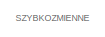
[diagram: root canvas - part 1/10, top center region]
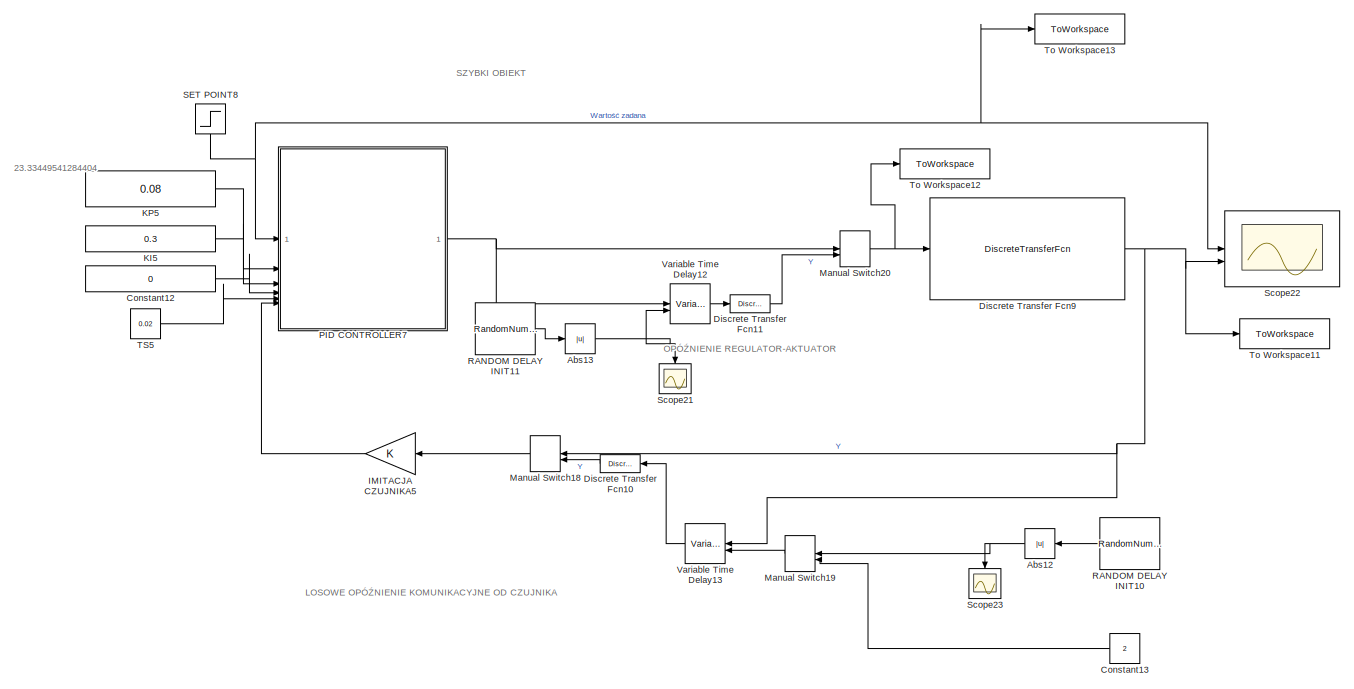
[diagram: root canvas - part 2/10, top right region]
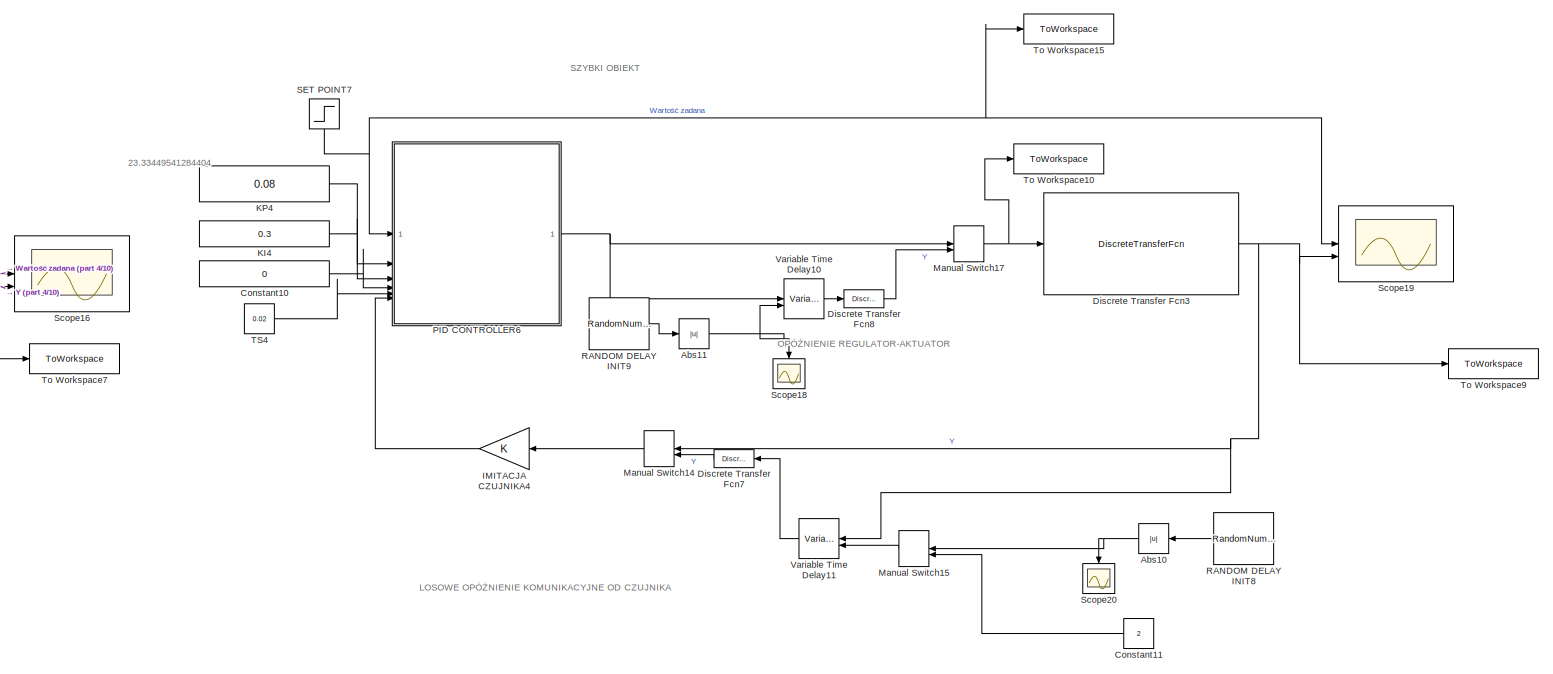
[diagram: root canvas - part 3/10, top right region]
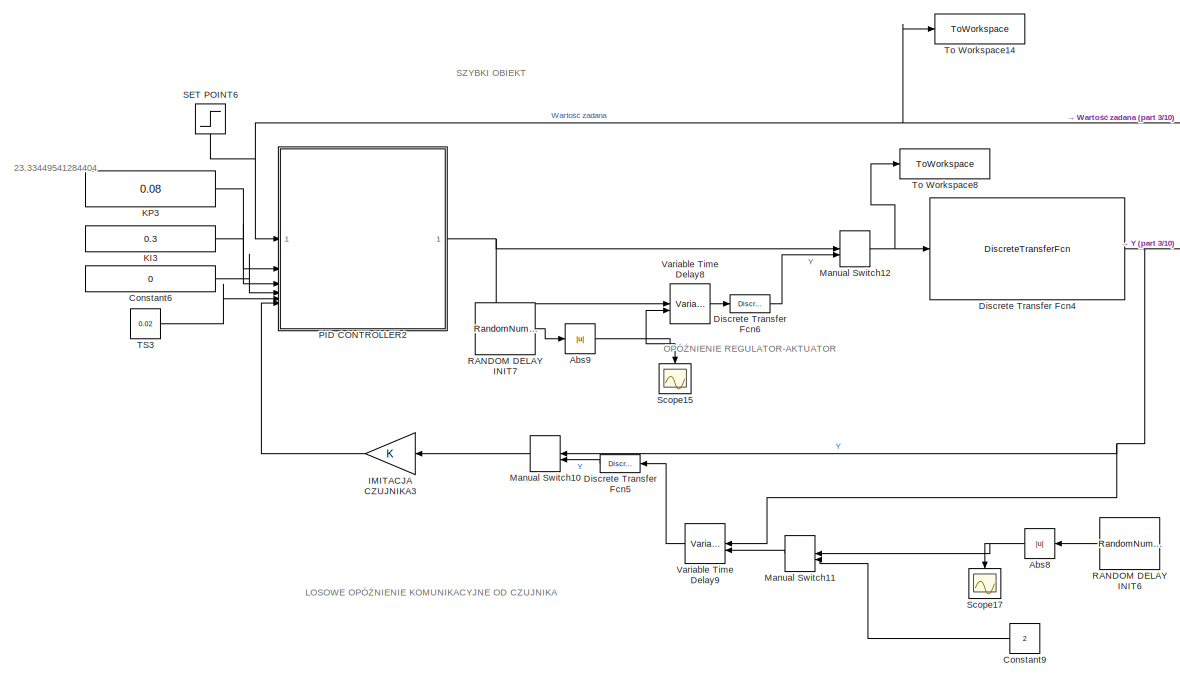
[diagram: root canvas - part 4/10, top center region]
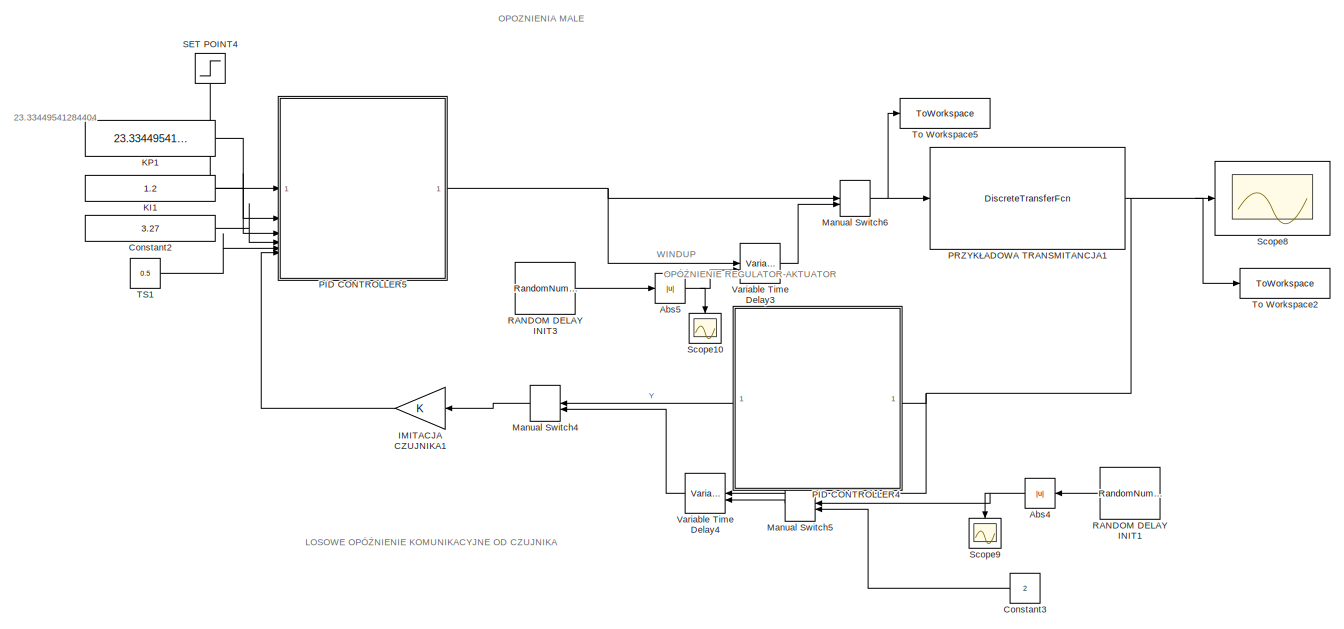
[diagram: root canvas - part 5/10, middle left region]
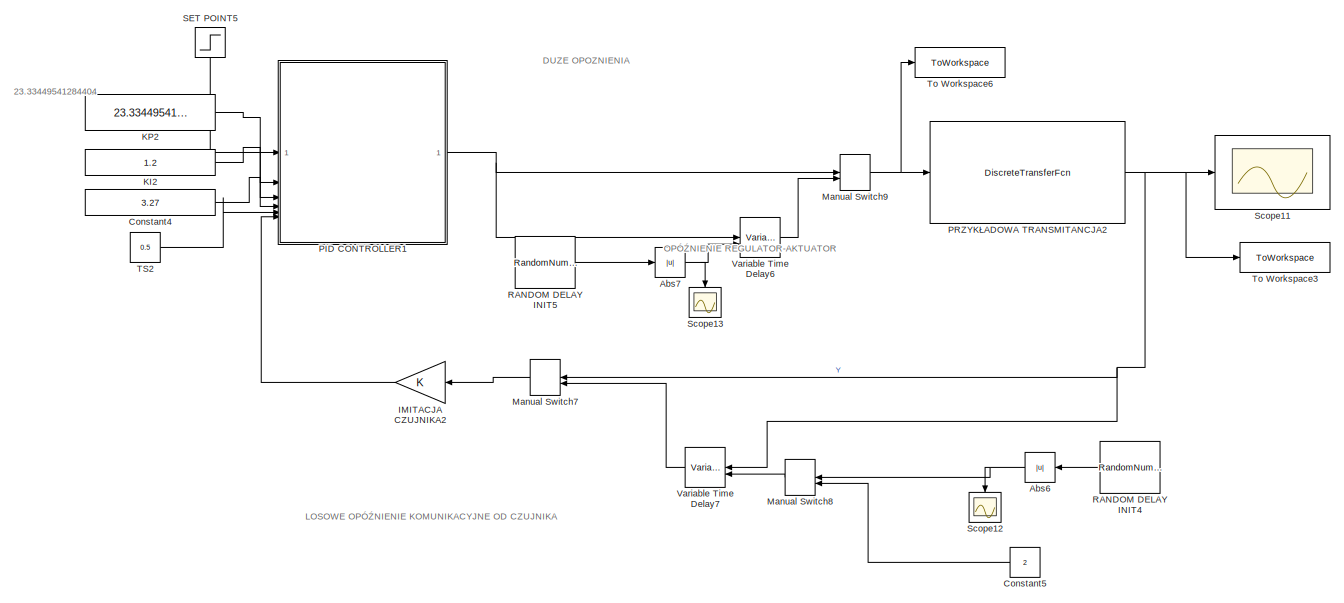
[diagram: root canvas - part 6/10, central region]
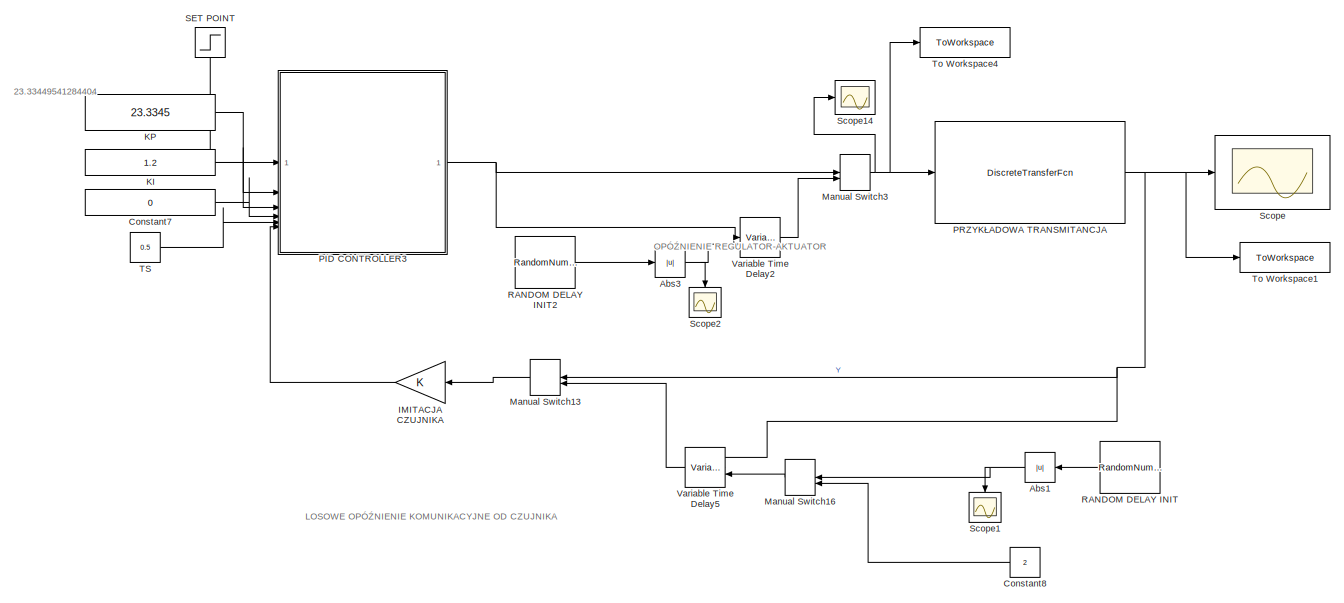
[diagram: root canvas - part 7/10, middle left region]
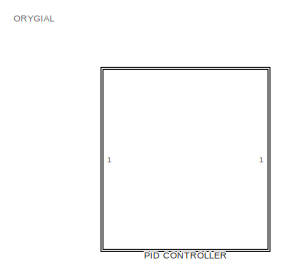
[diagram: root canvas - part 8/10, middle left region]
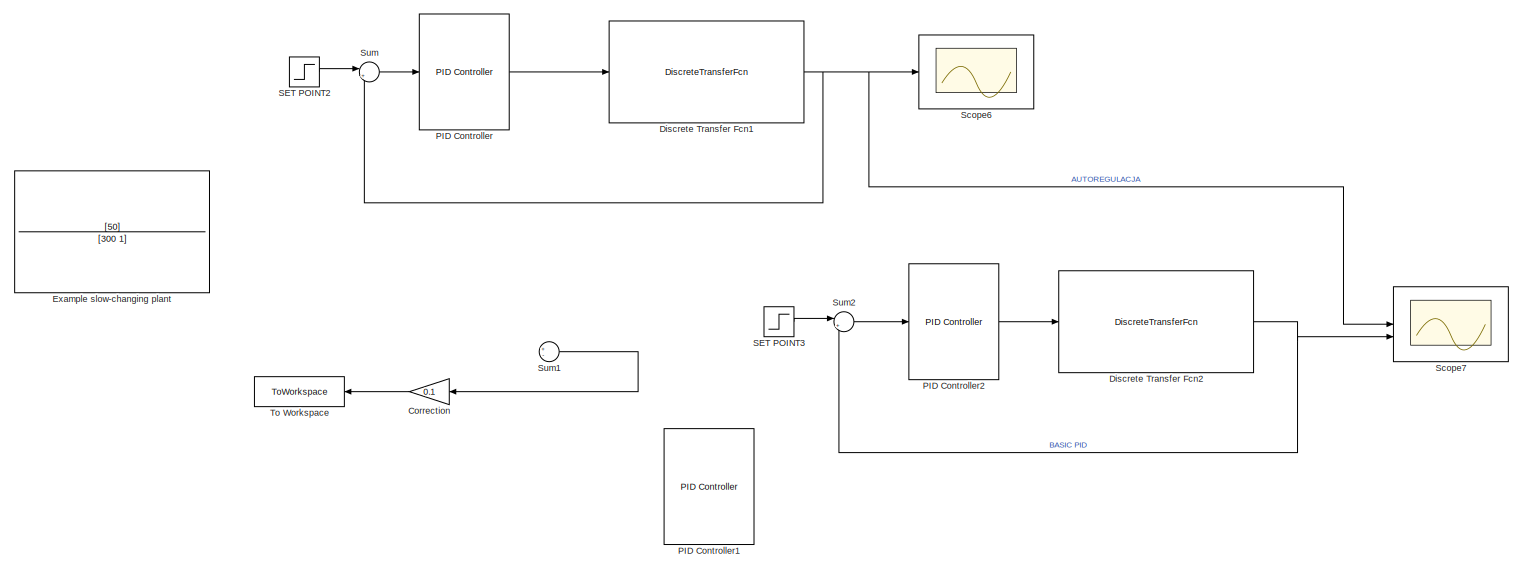
[diagram: root canvas - part 9/10, bottom left region]
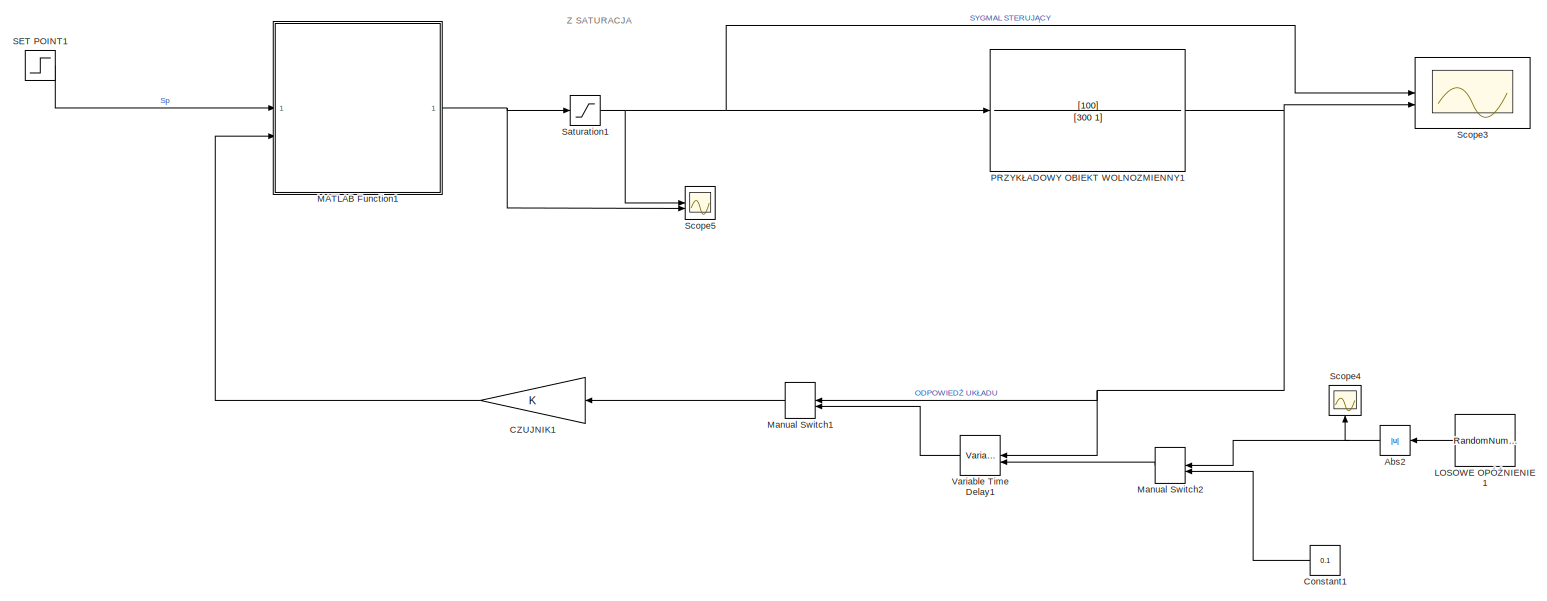
[diagram: root canvas - part 10/10, bottom left region]
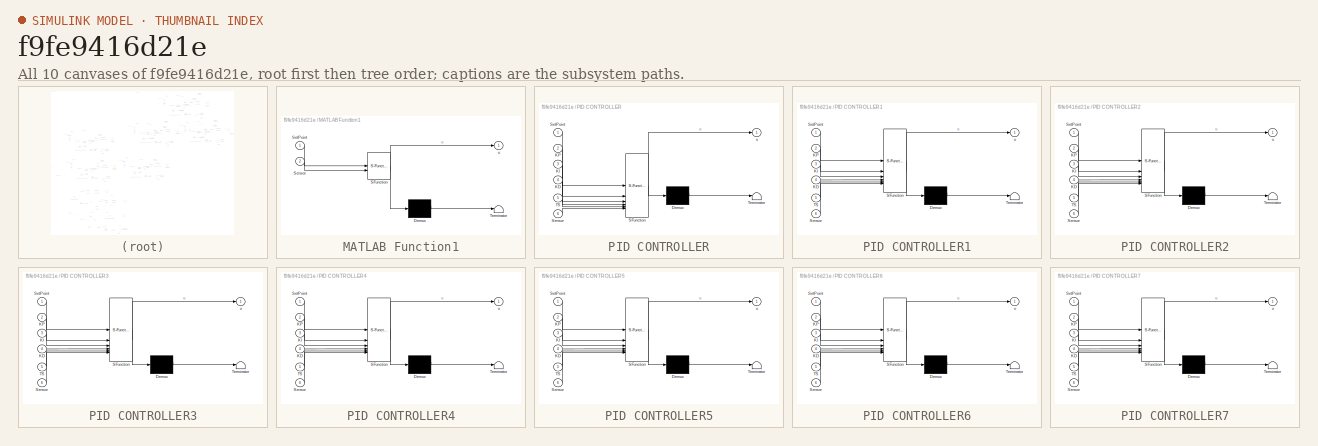
[diagram: thumbnail index - all 10 canvases of the model, root first then tree order]
MODEL slx_f9fe9416d21e
KIND model
CONFIG AbsTol = auto
CONFIG EnableMultiTasking = off
CONFIG FixedStep = auto
CONFIG MaxStep = auto
CONFIG MinStep = auto
CONFIG RelTol = 1e-3
CONFIG SampleTimeConstraint = Unconstrained
CONFIG SolverName = VariableStepAuto
CONFIG StartTime = 0.0
CONFIG StopTime = 20
BLOCK [Abs] Abs1
  NameLocation = top
  SaturateOnIntegerOverflow = off
BLOCK [Abs] Abs10
  NameLocation = top
  SaturateOnIntegerOverflow = off
BLOCK [Abs] Abs11
  SaturateOnIntegerOverflow = off
BLOCK [Abs] Abs12
  NameLocation = top
  SaturateOnIntegerOverflow = off
BLOCK [Abs] Abs13
  SaturateOnIntegerOverflow = off
BLOCK [Abs] Abs2
  Commented = on
  NameLocation = top
  SaturateOnIntegerOverflow = off
BLOCK [Abs] Abs3
  SaturateOnIntegerOverflow = off
BLOCK [Abs] Abs4
  Commented = on
  NameLocation = top
  SaturateOnIntegerOverflow = off
BLOCK [Abs] Abs5
  Commented = on
  SaturateOnIntegerOverflow = off
BLOCK [Abs] Abs6
  Commented = on
  NameLocation = top
  SaturateOnIntegerOverflow = off
BLOCK [Abs] Abs7
  Commented = on
  SaturateOnIntegerOverflow = off
BLOCK [Abs] Abs8
  NameLocation = top
  SaturateOnIntegerOverflow = off
BLOCK [Abs] Abs9
  SaturateOnIntegerOverflow = off
BLOCK [Gain] CZUJNIK1
  Commented = on
  NameLocation = top
BLOCK [Constant] Constant1
  Commented = on
  Value = 0.1
BLOCK [Constant] Constant10
  Value = 0
BLOCK [Constant] Constant11
  Value = 2
BLOCK [Constant] Constant12
  Value = 0
BLOCK [Constant] Constant13
  Value = 2
BLOCK [Constant] Constant2
  Commented = on
  Value = 3.27
BLOCK [Constant] Constant3
  Commented = on
  Value = 2
BLOCK [Constant] Constant4
  Commented = on
  Value = 3.27
BLOCK [Constant] Constant5
  Commented = on
  Value = 2
BLOCK [Constant] Constant6
  Value = 0
BLOCK [Constant] Constant7
  Value = 0
BLOCK [Constant] Constant8
  Value = 2
BLOCK [Constant] Constant9
  Value = 2
BLOCK [Gain] Correction
  Commented = on
  Gain = 0.1
  NameLocation = top
BLOCK [DiscreteTransferFcn] Discrete Transfer Fcn1
  Denominator = [1 -1]
  InputPortMap = u0
  Numerator = [0.001667]
BLOCK [DiscreteTransferFcn] Discrete Transfer Fcn10
  Denominator = [1]
  InputPortMap = u0
  NameLocation = top
  SampleTime = 0.02
BLOCK [DiscreteTransferFcn] Discrete Transfer Fcn11
  Denominator = [1]
  InputPortMap = u0
  SampleTime = 0.02
BLOCK [DiscreteTransferFcn] Discrete Transfer Fcn2
  Denominator = [1 -0.9355]
  InputPortMap = u0
  Numerator = [0.129]
  SampleTime = 0.02
BLOCK [DiscreteTransferFcn] Discrete Transfer Fcn3
  Denominator = [1 -0.9355]
  InputPortMap = u0
  Numerator = [0.129]
  SampleTime = 0.02
BLOCK [DiscreteTransferFcn] Discrete Transfer Fcn4
  Denominator = [1 -0.9355]
  InputPortMap = u0
  Numerator = [0.129]
  SampleTime = 0.02
BLOCK [DiscreteTransferFcn] Discrete Transfer Fcn5
  Denominator = [1]
  InputPortMap = u0
  NameLocation = top
  SampleTime = 0.02
BLOCK [DiscreteTransferFcn] Discrete Transfer Fcn6
  Denominator = [1]
  InputPortMap = u0
  SampleTime = 0.02
BLOCK [DiscreteTransferFcn] Discrete Transfer Fcn7
  Denominator = [1]
  InputPortMap = u0
  NameLocation = top
  SampleTime = 0.02
BLOCK [DiscreteTransferFcn] Discrete Transfer Fcn8
  Denominator = [1]
  InputPortMap = u0
  SampleTime = 0.02
BLOCK [DiscreteTransferFcn] Discrete Transfer Fcn9
  Denominator = [1 -0.9355]
  InputPortMap = u0
  Numerator = [0.129]
  SampleTime = 0.02
BLOCK [TransferFcn] Example slow-changing plant 
  Commented = on
  Denominator = [300 1]
  Numerator = [50]
BLOCK [Gain] IMITACJA CZUJNIKA
  NameLocation = top
BLOCK [Gain] IMITACJA CZUJNIKA1
  Commented = on
  NameLocation = top
BLOCK [Gain] IMITACJA CZUJNIKA2
  Commented = on
  NameLocation = top
BLOCK [Gain] IMITACJA CZUJNIKA3
  NameLocation = top
BLOCK [Gain] IMITACJA CZUJNIKA4
  NameLocation = top
BLOCK [Gain] IMITACJA CZUJNIKA5
  NameLocation = top
BLOCK [Constant] KI
  Value = 1.2
BLOCK [Constant] KI1
  Commented = on
  Value = 1.2
BLOCK [Constant] KI2
  Commented = on
  Value = 1.2
BLOCK [Constant] KI3
  Value = 0.3
BLOCK [Constant] KI4
  Value = 0.3
BLOCK [Constant] KI5
  Value = 0.3
BLOCK [Constant] KP
  Value = 23.3345
BLOCK [Constant] KP1
  Commented = on
  Value = 23.33449541284404
BLOCK [Constant] KP2
  Commented = on
  Value = 23.33449541284404
BLOCK [Constant] KP3
  Value = 0.08
BLOCK [Constant] KP4
  Value = 0.08
BLOCK [Constant] KP5
  Value = 0.08
BLOCK [RandomNumber] LOSOWE OPÓŹNIENIE1
  Commented = on
  Mean = 0.1
  NameLocation = top
  SampleTime = 0.1
  Variance = 0.0001
BLOCK [SubSystem] MATLAB Function1
  Commented = on
  ErrorFcn = Stateflow.Translate.translate
  LibrarySourceBlock = simulink/User-Defined\nFunctions/MATLAB Function
  PermitHierarchicalResolution = ExplicitOnly
  SFBlockType = MATLAB Function
  TreatAsAtomicUnit = on
BLOCK [Demux] MATLAB Function1/ Demux 
  Outputs = 1
BLOCK [S-Function] MATLAB Function1/ SFunction 
  EnableBusSupport = on
  FunctionName = sf_sfun
  PortCounts = [2 2]
  SFcnIsStateOwnerBlock = off
  SFunctionDeploymentMode = off
  Tag = Stateflow S-Function 1
BLOCK [Terminator] MATLAB Function1/ Terminator 
BLOCK [Inport] MATLAB Function1/Sensor
  Port = 2
BLOCK [Inport] MATLAB Function1/SetPoint
BLOCK [Outport] MATLAB Function1/u
BLOCK [ManualSwitch] Manual Switch1
  Commented = on
  CurrentSetting = 0
BLOCK [ManualSwitch] Manual Switch10
BLOCK [ManualSwitch] Manual Switch11
BLOCK [ManualSwitch] Manual Switch12
  NameLocation = top
BLOCK [ManualSwitch] Manual Switch13
BLOCK [ManualSwitch] Manual Switch14
BLOCK [ManualSwitch] Manual Switch15
BLOCK [ManualSwitch] Manual Switch16
BLOCK [ManualSwitch] Manual Switch17
  CurrentSetting = 0
  NameLocation = top
BLOCK [ManualSwitch] Manual Switch18
  CurrentSetting = 0
BLOCK [ManualSwitch] Manual Switch19
BLOCK [ManualSwitch] Manual Switch2
  Commented = on
BLOCK [ManualSwitch] Manual Switch20
  NameLocation = top
BLOCK [ManualSwitch] Manual Switch3
  NameLocation = top
BLOCK [ManualSwitch] Manual Switch4
  Commented = on
  CurrentSetting = 0
BLOCK [ManualSwitch] Manual Switch5
  Commented = on
BLOCK [ManualSwitch] Manual Switch6
  Commented = on
  CurrentSetting = 0
  NameLocation = top
BLOCK [ManualSwitch] Manual Switch7
  Commented = on
  CurrentSetting = 0
BLOCK [ManualSwitch] Manual Switch8
  Commented = on
BLOCK [ManualSwitch] Manual Switch9
  Commented = on
  CurrentSetting = 0
  NameLocation = top
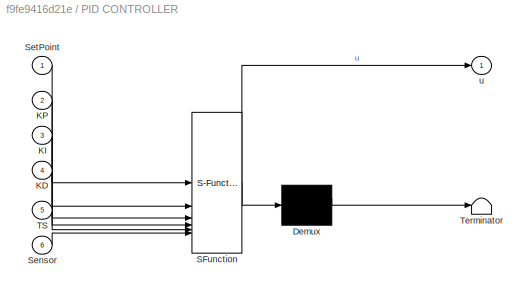
BLOCK [SubSystem] PID CONTROLLER
  ErrorFcn = Stateflow.Translate.translate
  LibrarySourceBlock = simulink/User-Defined\nFunctions/MATLAB Function
  PermitHierarchicalResolution = ExplicitOnly
  SFBlockType = MATLAB Function
  TreatAsAtomicUnit = on
BLOCK [Demux] PID CONTROLLER/ Demux 
  Outputs = 1
BLOCK [S-Function] PID CONTROLLER/ SFunction 
  EnableBusSupport = on
  FunctionName = sf_sfun
  PortCounts = [6 2]
  SFcnIsStateOwnerBlock = off
  SFunctionDeploymentMode = off
  Tag = Stateflow S-Function 4
BLOCK [Terminator] PID CONTROLLER/ Terminator 
BLOCK [Inport] PID CONTROLLER/KD
  Port = 4
BLOCK [Inport] PID CONTROLLER/KI
  Port = 3
BLOCK [Inport] PID CONTROLLER/KP
  Port = 2
BLOCK [Inport] PID CONTROLLER/Sensor
  Port = 6
BLOCK [Inport] PID CONTROLLER/SetPoint
BLOCK [Inport] PID CONTROLLER/TS
  Port = 5
BLOCK [Outport] PID CONTROLLER/u
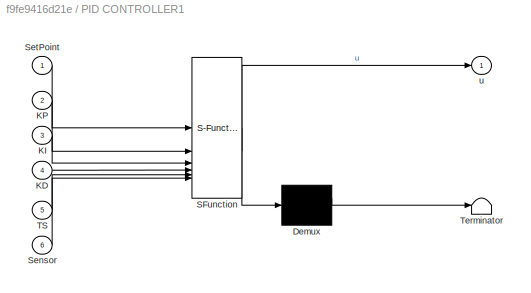
BLOCK [SubSystem] PID CONTROLLER1
  Commented = on
  ErrorFcn = Stateflow.Translate.translate
  PermitHierarchicalResolution = ExplicitOnly
  SFBlockType = MATLAB Function
  SystemSampleTime = 0.5
  TreatAsAtomicUnit = on
BLOCK [Demux] PID CONTROLLER1/ Demux 
  Outputs = 1
BLOCK [S-Function] PID CONTROLLER1/ SFunction 
  EnableBusSupport = on
  FunctionName = sf_sfun
  PortCounts = [6 2]
  SFcnIsStateOwnerBlock = off
  SFunctionDeploymentMode = off
  Tag = Stateflow S-Function 2
BLOCK [Terminator] PID CONTROLLER1/ Terminator 
BLOCK [Inport] PID CONTROLLER1/KD
  Port = 4
BLOCK [Inport] PID CONTROLLER1/KI
  Port = 3
BLOCK [Inport] PID CONTROLLER1/KP
  Port = 2
BLOCK [Inport] PID CONTROLLER1/Sensor
  Port = 6
BLOCK [Inport] PID CONTROLLER1/SetPoint
BLOCK [Inport] PID CONTROLLER1/TS
  Port = 5
BLOCK [Outport] PID CONTROLLER1/u
BLOCK [SubSystem] PID CONTROLLER2
  ErrorFcn = Stateflow.Translate.translate
  PermitHierarchicalResolution = ExplicitOnly
  SFBlockType = MATLAB Function
  SystemSampleTime = 0.02
  TreatAsAtomicUnit = on
BLOCK [Demux] PID CONTROLLER2/ Demux 
  Outputs = 1
BLOCK [S-Function] PID CONTROLLER2/ SFunction 
  EnableBusSupport = on
  FunctionName = sf_sfun
  PortCounts = [6 2]
  SFcnIsStateOwnerBlock = off
  SFunctionDeploymentMode = off
  Tag = Stateflow S-Function 3
BLOCK [Terminator] PID CONTROLLER2/ Terminator 
BLOCK [Inport] PID CONTROLLER2/KD
  Port = 4
BLOCK [Inport] PID CONTROLLER2/KI
  Port = 3
BLOCK [Inport] PID CONTROLLER2/KP
  Port = 2
BLOCK [Inport] PID CONTROLLER2/Sensor
  Port = 6
BLOCK [Inport] PID CONTROLLER2/SetPoint
BLOCK [Inport] PID CONTROLLER2/TS
  Port = 5
BLOCK [Outport] PID CONTROLLER2/u
BLOCK [SubSystem] PID CONTROLLER3
  ErrorFcn = Stateflow.Translate.translate
  PermitHierarchicalResolution = ExplicitOnly
  SFBlockType = MATLAB Function
  SystemSampleTime = 0.5
  TreatAsAtomicUnit = on
BLOCK [Demux] PID CONTROLLER3/ Demux 
  Outputs = 1
BLOCK [S-Function] PID CONTROLLER3/ SFunction 
  EnableBusSupport = on
  FunctionName = sf_sfun
  PortCounts = [6 2]
  SFcnIsStateOwnerBlock = off
  SFunctionDeploymentMode = off
  Tag = Stateflow S-Function 5
BLOCK [Terminator] PID CONTROLLER3/ Terminator 
BLOCK [Inport] PID CONTROLLER3/KD
  Port = 4
BLOCK [Inport] PID CONTROLLER3/KI
  Port = 3
BLOCK [Inport] PID CONTROLLER3/KP
  Port = 2
BLOCK [Inport] PID CONTROLLER3/Sensor
  Port = 6
BLOCK [Inport] PID CONTROLLER3/SetPoint
BLOCK [Inport] PID CONTROLLER3/TS
  Port = 5
BLOCK [Outport] PID CONTROLLER3/u
BLOCK [SubSystem] PID CONTROLLER4
  ErrorFcn = Stateflow.Translate.translate
  PermitHierarchicalResolution = ExplicitOnly
  SFBlockType = MATLAB Function
  SystemSampleTime = 0.5
  TreatAsAtomicUnit = on
BLOCK [Demux] PID CONTROLLER4/ Demux 
  Outputs = 1
BLOCK [S-Function] PID CONTROLLER4/ SFunction 
  EnableBusSupport = on
  FunctionName = sf_sfun
  PortCounts = [6 2]
  SFcnIsStateOwnerBlock = off
  SFunctionDeploymentMode = off
  Tag = Stateflow S-Function 6
BLOCK [Terminator] PID CONTROLLER4/ Terminator 
BLOCK [Inport] PID CONTROLLER4/KD
  Port = 4
BLOCK [Inport] PID CONTROLLER4/KI
  Port = 3
BLOCK [Inport] PID CONTROLLER4/KP
  Port = 2
BLOCK [Inport] PID CONTROLLER4/Sensor
  Port = 6
BLOCK [Inport] PID CONTROLLER4/SetPoint
BLOCK [Inport] PID CONTROLLER4/TS
  Port = 5
BLOCK [Outport] PID CONTROLLER4/u
BLOCK [SubSystem] PID CONTROLLER5
  Commented = on
  ErrorFcn = Stateflow.Translate.translate
  PermitHierarchicalResolution = ExplicitOnly
  SFBlockType = MATLAB Function
  SystemSampleTime = 0.5
  TreatAsAtomicUnit = on
BLOCK [Demux] PID CONTROLLER5/ Demux 
  Outputs = 1
BLOCK [S-Function] PID CONTROLLER5/ SFunction 
  EnableBusSupport = on
  FunctionName = sf_sfun
  PortCounts = [6 2]
  SFcnIsStateOwnerBlock = off
  SFunctionDeploymentMode = off
  Tag = Stateflow S-Function 7
BLOCK [Terminator] PID CONTROLLER5/ Terminator 
BLOCK [Inport] PID CONTROLLER5/KD
  Port = 4
BLOCK [Inport] PID CONTROLLER5/KI
  Port = 3
BLOCK [Inport] PID CONTROLLER5/KP
  Port = 2
BLOCK [Inport] PID CONTROLLER5/Sensor
  Port = 6
BLOCK [Inport] PID CONTROLLER5/SetPoint
BLOCK [Inport] PID CONTROLLER5/TS
  Port = 5
BLOCK [Outport] PID CONTROLLER5/u
BLOCK [SubSystem] PID CONTROLLER6
  ErrorFcn = Stateflow.Translate.translate
  PermitHierarchicalResolution = ExplicitOnly
  SFBlockType = MATLAB Function
  SystemSampleTime = 0.02
  TreatAsAtomicUnit = on
BLOCK [Demux] PID CONTROLLER6/ Demux 
  Outputs = 1
BLOCK [S-Function] PID CONTROLLER6/ SFunction 
  EnableBusSupport = on
  FunctionName = sf_sfun
  PortCounts = [6 2]
  SFcnIsStateOwnerBlock = off
  SFunctionDeploymentMode = off
  Tag = Stateflow S-Function 8
BLOCK [Terminator] PID CONTROLLER6/ Terminator 
BLOCK [Inport] PID CONTROLLER6/KD
  Port = 4
BLOCK [Inport] PID CONTROLLER6/KI
  Port = 3
BLOCK [Inport] PID CONTROLLER6/KP
  Port = 2
BLOCK [Inport] PID CONTROLLER6/Sensor
  Port = 6
BLOCK [Inport] PID CONTROLLER6/SetPoint
BLOCK [Inport] PID CONTROLLER6/TS
  Port = 5
BLOCK [Outport] PID CONTROLLER6/u
BLOCK [SubSystem] PID CONTROLLER7
  ErrorFcn = Stateflow.Translate.translate
  PermitHierarchicalResolution = ExplicitOnly
  SFBlockType = MATLAB Function
  SystemSampleTime = 0.02
  TreatAsAtomicUnit = on
BLOCK [Demux] PID CONTROLLER7/ Demux 
  Outputs = 1
BLOCK [S-Function] PID CONTROLLER7/ SFunction 
  EnableBusSupport = on
  FunctionName = sf_sfun
  PortCounts = [6 2]
  SFcnIsStateOwnerBlock = off
  SFunctionDeploymentMode = off
  Tag = Stateflow S-Function 9
BLOCK [Terminator] PID CONTROLLER7/ Terminator 
BLOCK [Inport] PID CONTROLLER7/KD
  Port = 4
BLOCK [Inport] PID CONTROLLER7/KI
  Port = 3
BLOCK [Inport] PID CONTROLLER7/KP
  Port = 2
BLOCK [Inport] PID CONTROLLER7/Sensor
  Port = 6
BLOCK [Inport] PID CONTROLLER7/SetPoint
BLOCK [Inport] PID CONTROLLER7/TS
  Port = 5
BLOCK [Outport] PID CONTROLLER7/u
BLOCK [Reference] PID Controller  REF=slpidlib/PID Controller
  LibrarySourceBlock = simulink/Continuous/PID Controller
  SourceBlock = slpidlib/PID Controller
  SourceType = PID 1dof
BLOCK [Reference] PID Controller1  REF=slpidlib/PID Controller
  LibrarySourceBlock = simulink/Continuous/PID Controller
  SourceBlock = slpidlib/PID Controller
  SourceType = PID 1dof
BLOCK [Reference] PID Controller2  REF=slpidlib/PID Controller
  LibrarySourceBlock = simulink/Continuous/PID Controller
  SourceBlock = slpidlib/PID Controller
  SourceType = PID 1dof
BLOCK [DiscreteTransferFcn] PRZYKŁADOWA TRANSMITANCJA
  Denominator = [1 -1]
  InputPortMap = u0
  Numerator = [0.001667]
BLOCK [DiscreteTransferFcn] PRZYKŁADOWA TRANSMITANCJA1
  Commented = on
  Denominator = [1 -1]
  InputPortMap = u0
  Numerator = [0.001667]
BLOCK [DiscreteTransferFcn] PRZYKŁADOWA TRANSMITANCJA2
  Commented = on
  Denominator = [1 -1]
  InputPortMap = u0
  Numerator = [0.001667]
BLOCK [TransferFcn] PRZYKŁADOWY  OBIEKT WOLNOZMIENNY1
  Commented = on
  Denominator = [300 1]
  Numerator = [100]
BLOCK [RandomNumber] RANDOM DELAY INIT
  Mean = 1
  NameLocation = top
  SampleTime = 0.1
  Variance = 0.0001
BLOCK [RandomNumber] RANDOM DELAY INIT1
  Commented = on
  Mean = 0.1
  NameLocation = top
  SampleTime = 0.1
  Variance = 0.0001
BLOCK [RandomNumber] RANDOM DELAY INIT10
  Mean = 0.1
  NameLocation = top
  SampleTime = 0.02
  Variance = 0.0001
BLOCK [RandomNumber] RANDOM DELAY INIT11
  Mean = 0.1
  SampleTime = 0.02
  Variance = 0.0001
BLOCK [RandomNumber] RANDOM DELAY INIT2
  Mean = 0.1
  SampleTime = 0.1
  Variance = 0.0001
BLOCK [RandomNumber] RANDOM DELAY INIT3
  Commented = on
  Mean = 0.1
  SampleTime = 0.1
  Variance = 0.0001
BLOCK [RandomNumber] RANDOM DELAY INIT4
  Commented = on
  Mean = 1
  NameLocation = top
  SampleTime = 0.1
  Variance = 0.0001
BLOCK [RandomNumber] RANDOM DELAY INIT5
  Commented = on
  Mean = 1
  SampleTime = 0.1
  Variance = 0.0001
BLOCK [RandomNumber] RANDOM DELAY INIT6
  Mean = 0.5
  NameLocation = top
  SampleTime = 0.02
  Variance = 0.0001
BLOCK [RandomNumber] RANDOM DELAY INIT7
  Mean = 0.1
  SampleTime = 0.02
  Variance = 0.0001
BLOCK [RandomNumber] RANDOM DELAY INIT8
  Mean = 1
  NameLocation = top
  SampleTime = 0.02
  Variance = 0.0001
BLOCK [RandomNumber] RANDOM DELAY INIT9
  Mean = 0.1
  SampleTime = 0.02
  Variance = 0.0001
BLOCK [Step] SET POINT
  After = 25
  NameLocation = left
  SampleTime = 0.1
  Time = 0
BLOCK [Step] SET POINT1
  After = 25
  Commented = on
  SampleTime = 0.1
  Time = 0.5
BLOCK [Step] SET POINT2
  Time = 0
BLOCK [Step] SET POINT3
  SampleTime = 0.02
  Time = 0
BLOCK [Step] SET POINT4
  After = 25
  Commented = on
  NameLocation = left
  SampleTime = 0.1
  Time = 0
BLOCK [Step] SET POINT5
  After = 25
  Commented = on
  NameLocation = left
  SampleTime = 0.1
  Time = 0
BLOCK [Step] SET POINT6
  After = 170
  NameLocation = left
  SampleTime = 0.02
  Time = 0
BLOCK [Step] SET POINT7
  After = 170
  NameLocation = left
  SampleTime = 0.02
  Time = 0
BLOCK [Step] SET POINT8
  After = 170
  NameLocation = left
  SampleTime = 0.02
  Time = 0
BLOCK [Saturate] Saturation1
  Commented = on
  LowerLimit = 0
  UpperLimit = 1200
BLOCK [Scope] Scope
  Commented = on
  Floating = off
  NumInputPorts = 1
  ScopeSpecificationString = Simulink.scopes.TimeScopeBlockCfg('CurrentConfiguration', extmgr.ConfigurationSet(extmgr.Configuration('Core','General UI',true),extmgr.Configuration('Core','Source UI',true),extmgr.Configuration('Sources','WiredSimulink',true,'DataLoggingVariableName','ScopeData2'),extmgr.Configuration('Visuals','Time Domain',true,'SerializedDisplays',{struct('MinYLimReal','-3.12467','MaxYLimReal','28.12205','YLa...<+1461ch>
BLOCK [Scope] Scope1
  Floating = off
  NameLocation = left
  NumInputPorts = 1
  ScopeSpecificationString = Simulink.scopes.TimeScopeBlockCfg('CurrentConfiguration', extmgr.ConfigurationSet(extmgr.Configuration('Core','General UI',true),extmgr.Configuration('Core','Source UI',true),extmgr.Configuration('Sources','WiredSimulink',true,'DataLoggingVariableName','ScopeData1'),extmgr.Configuration('Visuals','Time Domain',true),extmgr.Configuration('Tools','Plot Navigation',true),extmgr.Configuration('Tools',...<+40ch>  <repeated x3 — deduplicated; at blocks: Scope1, Scope15, Scope2>
BLOCK [Scope] Scope10
  Commented = on
  Floating = off
  NameLocation = left
  NumInputPorts = 1
  ScopeSpecificationString = Simulink.scopes.TimeScopeBlockCfg('CurrentConfiguration', extmgr.ConfigurationSet(extmgr.Configuration('Core','General UI',true),extmgr.Configuration('Core','Source UI',true),extmgr.Configuration('Sources','WiredSimulink',true,'DataLoggingVariableName','ScopeData3'),extmgr.Configuration('Visuals','Time Domain',true),extmgr.Configuration('Tools','Plot Navigation',true),extmgr.Configuration('Tools',...<+40ch>
BLOCK [Scope] Scope11
  Commented = on
  Floating = off
  NumInputPorts = 1
  ScopeSpecificationString = Simulink.scopes.TimeScopeBlockCfg('CurrentConfiguration', extmgr.ConfigurationSet(extmgr.Configuration('Core','General UI',true),extmgr.Configuration('Core','Source UI',true),extmgr.Configuration('Sources','WiredSimulink',true,'DataLoggingVariableName','ScopeData6'),extmgr.Configuration('Visuals','Time Domain',true,'SerializedDisplays',{struct('MinYLimReal','-3.12458','MaxYLimReal','28.1212','YLab...<+1457ch>
BLOCK [Scope] Scope12
  Commented = on
  Floating = off
  NameLocation = left
  NumInputPorts = 1
  ScopeSpecificationString = Simulink.scopes.TimeScopeBlockCfg('CurrentConfiguration', extmgr.ConfigurationSet(extmgr.Configuration('Core','General UI',true),extmgr.Configuration('Core','Source UI',true),extmgr.Configuration('Sources','WiredSimulink',true,'DataLoggingVariableName','ScopeData7'),extmgr.Configuration('Visuals','Time Domain',true),extmgr.Configuration('Tools','Plot Navigation',true),extmgr.Configuration('Tools',...<+40ch>
BLOCK [Scope] Scope13
  Commented = on
  Floating = off
  NameLocation = left
  NumInputPorts = 1
  ScopeSpecificationString = Simulink.scopes.TimeScopeBlockCfg('CurrentConfiguration', extmgr.ConfigurationSet(extmgr.Configuration('Core','General UI',true),extmgr.Configuration('Core','Source UI',true),extmgr.Configuration('Sources','WiredSimulink',true,'DataLoggingVariableName','ScopeData8'),extmgr.Configuration('Visuals','Time Domain',true,'SerializedDisplays',{struct('MinYLimReal','0.96253','MaxYLimReal','1.04343','YLabe...<+1361ch>
BLOCK [Scope] Scope14
  Floating = off
  NumInputPorts = 1
  ScopeSpecificationString = Simulink.scopes.TimeScopeBlockCfg('CurrentConfiguration', extmgr.ConfigurationSet(extmgr.Configuration('Core','General UI',true),extmgr.Configuration('Core','Source UI',true),extmgr.Configuration('Sources','WiredSimulink',true,'DataLoggingVariableName','ScopeData1'),extmgr.Configuration('Visuals','Time Domain',true,'SerializedDisplays',{struct('MinYLimReal','-12.48961','MaxYLimReal','112.49885','Y...<+1778ch>
BLOCK [Scope] Scope15
  Floating = off
  NameLocation = left
  NumInputPorts = 1
BLOCK [Scope] Scope16
  Floating = off
  NumInputPorts = 2
  ScopeSpecificationString = Simulink.scopes.TimeScopeBlockCfg('CurrentConfiguration', extmgr.ConfigurationSet(extmgr.Configuration('Core','General UI',true),extmgr.Configuration('Core','Source UI',true),extmgr.Configuration('Sources','WiredSimulink',true,'DataLoggingVariableName','ScopeData2'),extmgr.Configuration('Visuals','Time Domain',true,'SerializedDisplays',{struct('MinYLimReal','-21.25','MaxYLimReal','191.25','YLabelR...<+1800ch>
BLOCK [Scope] Scope17
  Floating = off
  NameLocation = left
  NumInputPorts = 1
  ScopeSpecificationString = Simulink.scopes.TimeScopeBlockCfg('CurrentConfiguration', extmgr.ConfigurationSet(extmgr.Configuration('Core','General UI',true),extmgr.Configuration('Core','Source UI',true),extmgr.Configuration('Sources','WiredSimulink',true,'DataLoggingVariableName','ScopeData3'),extmgr.Configuration('Visuals','Time Domain',true),extmgr.Configuration('Tools','Plot Navigation',true),extmgr.Configuration('Tools',...<+40ch>
BLOCK [Scope] Scope18
  Floating = off
  NameLocation = left
  NumInputPorts = 1
  ScopeSpecificationString = Simulink.scopes.TimeScopeBlockCfg('CurrentConfiguration', extmgr.ConfigurationSet(extmgr.Configuration('Core','General UI',true),extmgr.Configuration('Core','Source UI',true),extmgr.Configuration('Sources','WiredSimulink',true,'DataLoggingVariableName','ScopeData4'),extmgr.Configuration('Visuals','Time Domain',true),extmgr.Configuration('Tools','Plot Navigation',true),extmgr.Configuration('Tools',...<+40ch>
BLOCK [Scope] Scope19
  Floating = off
  NumInputPorts = 2
  ScopeSpecificationString = Simulink.scopes.TimeScopeBlockCfg('CurrentConfiguration', extmgr.ConfigurationSet(extmgr.Configuration('Core','General UI',true),extmgr.Configuration('Core','Source UI',true),extmgr.Configuration('Sources','WiredSimulink',true,'DataLoggingVariableName','ScopeData5'),extmgr.Configuration('Visuals','Time Domain',true,'SerializedDisplays',{struct('MinYLimReal','-21.26378','MaxYLimReal','191.37399','Y...<+1818ch>
BLOCK [Scope] Scope2
  Floating = off
  NameLocation = left
  NumInputPorts = 1
BLOCK [Scope] Scope20
  Floating = off
  NameLocation = left
  NumInputPorts = 1
  ScopeSpecificationString = Simulink.scopes.TimeScopeBlockCfg('CurrentConfiguration', extmgr.ConfigurationSet(extmgr.Configuration('Core','General UI',true),extmgr.Configuration('Core','Source UI',true),extmgr.Configuration('Sources','WiredSimulink',true,'DataLoggingVariableName','ScopeData6'),extmgr.Configuration('Visuals','Time Domain',true),extmgr.Configuration('Tools','Plot Navigation',true),extmgr.Configuration('Tools',...<+40ch>
BLOCK [Scope] Scope21
  Floating = off
  NameLocation = left
  NumInputPorts = 1
  ScopeSpecificationString = Simulink.scopes.TimeScopeBlockCfg('CurrentConfiguration', extmgr.ConfigurationSet(extmgr.Configuration('Core','General UI',true),extmgr.Configuration('Core','Source UI',true),extmgr.Configuration('Sources','WiredSimulink',true,'DataLoggingVariableName','ScopeData7'),extmgr.Configuration('Visuals','Time Domain',true),extmgr.Configuration('Tools','Plot Navigation',true),extmgr.Configuration('Tools',...<+40ch>
BLOCK [Scope] Scope22
  Floating = off
  NumInputPorts = 2
  ScopeSpecificationString = Simulink.scopes.TimeScopeBlockCfg('CurrentConfiguration', extmgr.ConfigurationSet(extmgr.Configuration('Core','General UI',true),extmgr.Configuration('Core','Source UI',true),extmgr.Configuration('Sources','WiredSimulink',true,'DataLoggingVariableName','ScopeData8'),extmgr.Configuration('Visuals','Time Domain',true,'SerializedDisplays',{struct('MinYLimReal','-21.26378','MaxYLimReal','191.37399','Y...<+1818ch>
BLOCK [Scope] Scope23
  Floating = off
  NameLocation = left
  NumInputPorts = 1
  ScopeSpecificationString = Simulink.scopes.TimeScopeBlockCfg('CurrentConfiguration', extmgr.ConfigurationSet(extmgr.Configuration('Core','General UI',true),extmgr.Configuration('Core','Source UI',true),extmgr.Configuration('Sources','WiredSimulink',true,'DataLoggingVariableName','ScopeData9'),extmgr.Configuration('Visuals','Time Domain',true),extmgr.Configuration('Tools','Plot Navigation',true),extmgr.Configuration('Tools',...<+40ch>
BLOCK [Scope] Scope3
  Commented = on
  Floating = off
  NumInputPorts = 2
  ScopeSpecificationString = Simulink.scopes.TimeScopeBlockCfg('CurrentConfiguration', extmgr.ConfigurationSet(extmgr.Configuration('Core','General UI',true),extmgr.Configuration('Core','Source UI',true),extmgr.Configuration('Sources','WiredSimulink',true),extmgr.Configuration('Visuals','Time Domain',true,'SerializedDisplays',{struct('MinYLimReal','-0.12503','MaxYLimReal','1.12524','YLabelReal','','MinYLimMag','0.00000','MaxY...<+1401ch>
BLOCK [Scope] Scope4
  Commented = on
  Floating = off
  NameLocation = right
  NumInputPorts = 1
  ScopeSpecificationString = Simulink.scopes.TimeScopeBlockCfg('CurrentConfiguration', extmgr.ConfigurationSet(extmgr.Configuration('Core','General UI',true),extmgr.Configuration('Core','Source UI',true),extmgr.Configuration('Sources','WiredSimulink',true,'DataLoggingVariableName','ScopeData4'),extmgr.Configuration('Visuals','Time Domain',true),extmgr.Configuration('Tools','Plot Navigation',true),extmgr.Configuration('Tools',...<+40ch>
BLOCK [Scope] Scope5
  Commented = on
  Floating = off
  NumInputPorts = 2
  ScopeSpecificationString = Simulink.scopes.TimeScopeBlockCfg('CurrentConfiguration', extmgr.ConfigurationSet(extmgr.Configuration('Core','General UI',true),extmgr.Configuration('Core','Source UI',true),extmgr.Configuration('Sources','WiredSimulink',true,'DataLoggingVariableName','ScopeData5'),extmgr.Configuration('Visuals','Time Domain',true,'SerializedDisplays',{struct('MinYLimReal','-0.01574','MaxYLimReal','0.14167','YLab...<+1394ch>
BLOCK [Scope] Scope6
  Floating = off
  NumInputPorts = 1
  ScopeSpecificationString = Simulink.scopes.TimeScopeBlockCfg('CurrentConfiguration', extmgr.ConfigurationSet(extmgr.Configuration('Core','General UI',true),extmgr.Configuration('Core','Source UI',true),extmgr.Configuration('Sources','WiredSimulink',true,'DataLoggingVariableName','ScopeData1'),extmgr.Configuration('Visuals','Time Domain',true,'SerializedDisplays',{struct('MinYLimReal','-3.12187','MaxYLimReal','28.09682','YLa...<+1461ch>
BLOCK [Scope] Scope7
  Floating = off
  NumInputPorts = 2
  ScopeSpecificationString = Simulink.scopes.TimeScopeBlockCfg('CurrentConfiguration', extmgr.ConfigurationSet(extmgr.Configuration('Core','General UI',true),extmgr.Configuration('Core','Source UI',true),extmgr.Configuration('Sources','WiredSimulink',true,'DataLoggingVariableName','ScopeData2'),extmgr.Configuration('Visuals','Time Domain',true,'SerializedDisplays',{struct('MinYLimReal','-0.12808','MaxYLimReal','1.1527','YLabe...<+1842ch>
BLOCK [Scope] Scope8
  Commented = on
  Floating = off
  NumInputPorts = 1
  ScopeSpecificationString = Simulink.scopes.TimeScopeBlockCfg('CurrentConfiguration', extmgr.ConfigurationSet(extmgr.Configuration('Core','General UI',true),extmgr.Configuration('Core','Source UI',true),extmgr.Configuration('Sources','WiredSimulink',true,'DataLoggingVariableName','ScopeData4'),extmgr.Configuration('Visuals','Time Domain',true,'SerializedDisplays',{struct('MinYLimReal','-3.39562','MaxYLimReal','30.56054','YLa...<+1461ch>
BLOCK [Scope] Scope9
  Commented = on
  Floating = off
  NameLocation = left
  NumInputPorts = 1
  ScopeSpecificationString = Simulink.scopes.TimeScopeBlockCfg('CurrentConfiguration', extmgr.ConfigurationSet(extmgr.Configuration('Core','General UI',true),extmgr.Configuration('Core','Source UI',true),extmgr.Configuration('Sources','WiredSimulink',true,'DataLoggingVariableName','ScopeData5'),extmgr.Configuration('Visuals','Time Domain',true),extmgr.Configuration('Tools','Plot Navigation',true),extmgr.Configuration('Tools',...<+40ch>
BLOCK [Sum] Sum
  Inputs = |+-
BLOCK [Sum] Sum1
  Commented = on
  Inputs = +-|
BLOCK [Sum] Sum2
  Inputs = |+-
BLOCK [Constant] TS
  Value = 0.5
  VectorParams1D = off
BLOCK [Constant] TS1
  Commented = on
  Value = 0.5
  VectorParams1D = off
BLOCK [Constant] TS2
  Commented = on
  Value = 0.5
  VectorParams1D = off
BLOCK [Constant] TS3
  Value = 0.02
  VectorParams1D = off
BLOCK [Constant] TS4
  Value = 0.02
  VectorParams1D = off
BLOCK [Constant] TS5
  Value = 0.02
  VectorParams1D = off
BLOCK [ToWorkspace] To Workspace
  Commented = on
  FixptAsFi = on
  MaxDataPoints = inf
  NameLocation = top
  SampleTime = -1
  SaveFormat = Timeseries
  VariableName = simout
BLOCK [ToWorkspace] To Workspace1
  Commented = on
  FixptAsFi = on
  MaxDataPoints = inf
  SampleTime = -1
  SaveFormat = Timeseries
  VariableName = WYJSCIE
BLOCK [ToWorkspace] To Workspace10
  FixptAsFi = on
  MaxDataPoints = inf
  SampleTime = -1
  SaveFormat = Timeseries
  VariableName = Sterujacy4
BLOCK [ToWorkspace] To Workspace11
  FixptAsFi = on
  MaxDataPoints = inf
  SampleTime = -1
  SaveFormat = Timeseries
  VariableName = WYJSCIE5
BLOCK [ToWorkspace] To Workspace12
  FixptAsFi = on
  MaxDataPoints = inf
  SampleTime = -1
  SaveFormat = Timeseries
  VariableName = Sterujacy5
BLOCK [ToWorkspace] To Workspace13
  FixptAsFi = on
  MaxDataPoints = inf
  SampleTime = -1
  SaveFormat = Timeseries
  VariableName = Setpoint2
BLOCK [ToWorkspace] To Workspace14
  FixptAsFi = on
  MaxDataPoints = inf
  SampleTime = -1
  SaveFormat = Timeseries
  VariableName = Setpoint1
BLOCK [ToWorkspace] To Workspace15
  FixptAsFi = on
  MaxDataPoints = inf
  SampleTime = -1
  SaveFormat = Timeseries
  VariableName = Setpoint3
BLOCK [ToWorkspace] To Workspace2
  Commented = on
  FixptAsFi = on
  MaxDataPoints = inf
  SampleTime = -1
  SaveFormat = Timeseries
  VariableName = WYJSCIE1
BLOCK [ToWorkspace] To Workspace3
  Commented = on
  FixptAsFi = on
  MaxDataPoints = inf
  SampleTime = -1
  SaveFormat = Timeseries
  VariableName = WYJSCIE2
BLOCK [ToWorkspace] To Workspace4
  FixptAsFi = on
  MaxDataPoints = inf
  SampleTime = -1
  SaveFormat = Timeseries
  VariableName = Sterujacy
BLOCK [ToWorkspace] To Workspace5
  Commented = on
  FixptAsFi = on
  MaxDataPoints = inf
  SampleTime = -1
  SaveFormat = Timeseries
  VariableName = Sterujacy1
BLOCK [ToWorkspace] To Workspace6
  Commented = on
  FixptAsFi = on
  MaxDataPoints = inf
  SampleTime = -1
  SaveFormat = Timeseries
  VariableName = Sterujacy2
BLOCK [ToWorkspace] To Workspace7
  FixptAsFi = on
  MaxDataPoints = inf
  SampleTime = -1
  SaveFormat = Timeseries
  VariableName = WYJSCIE3
BLOCK [ToWorkspace] To Workspace8
  FixptAsFi = on
  MaxDataPoints = inf
  SampleTime = -1
  SaveFormat = Timeseries
  VariableName = Sterujacy3
BLOCK [ToWorkspace] To Workspace9
  FixptAsFi = on
  MaxDataPoints = inf
  SampleTime = -1
  SaveFormat = Timeseries
  VariableName = WYJSCIE4
BLOCK [VariableTransportDelay] Variable Time Delay1
  Commented = on
  MaximumDelay = 10
BLOCK [VariableTransportDelay] Variable Time Delay10
  MaximumDelay = 10
  NameLocation = top
BLOCK [VariableTransportDelay] Variable Time Delay11
  MaximumDelay = 10
BLOCK [VariableTransportDelay] Variable Time Delay12
  MaximumDelay = 10
  NameLocation = top
BLOCK [VariableTransportDelay] Variable Time Delay13
  MaximumDelay = 10
BLOCK [VariableTransportDelay] Variable Time Delay2
  MaximumDelay = 10
  NameLocation = top
BLOCK [VariableTransportDelay] Variable Time Delay3
  Commented = on
  MaximumDelay = 10
  NameLocation = top
BLOCK [VariableTransportDelay] Variable Time Delay4
  Commented = on
  MaximumDelay = 10
BLOCK [VariableTransportDelay] Variable Time Delay5
  MaximumDelay = 10
BLOCK [VariableTransportDelay] Variable Time Delay6
  Commented = on
  MaximumDelay = 10
  NameLocation = top
BLOCK [VariableTransportDelay] Variable Time Delay7
  Commented = on
  MaximumDelay = 10
BLOCK [VariableTransportDelay] Variable Time Delay8
  MaximumDelay = 10
  NameLocation = top
BLOCK [VariableTransportDelay] Variable Time Delay9
  MaximumDelay = 10
ANNOTATION (root): 23.33449541284404
ANNOTATION (root): SZYBKI OBIEKT
ANNOTATION (root): LOSOWE OPÓŹNIENIE KOMUNIKACYJNE OD CZUJNIKA
ANNOTATION (root): OPÓŹNIENIE REGULATOR-AKTUATOR
ANNOTATION (root): DUZE OPOZNIENIA
ANNOTATION (root): OPOZNIENIA MALE
ANNOTATION (root): SZYBKOZMIENNE
ANNOTATION (root): ORYGIAL
ANNOTATION (root): WINDUP
ANNOTATION (root): Z SATURACJA
NET Abs10:1 -> Manual Switch15:1, Scope20:1
NET Abs11:1 -> Scope18:1, Variable Time Delay10:2
NET Abs12:1 -> Manual Switch19:1, Scope23:1
NET Abs13:1 -> Scope21:1, Variable Time Delay12:2
NET Abs1:1 -> Manual Switch16:1, Scope1:1
NET Abs2:1 -> Manual Switch2:1, Scope4:1
NET Abs3:1 -> Scope2:1, Variable Time Delay2:2
NET Abs4:1 -> Manual Switch5:1, Scope9:1
NET Abs5:1 -> Scope10:1, Variable Time Delay3:2
NET Abs6:1 -> Manual Switch8:1, Scope12:1
NET Abs7:1 -> Scope13:1, Variable Time Delay6:2
NET Abs8:1 -> Manual Switch11:1, Scope17:1
NET Abs9:1 -> Scope15:1, Variable Time Delay8:2
LINE CZUJNIK1:1 -> MATLAB Function1:2
LINE Constant10:1 -> PID CONTROLLER6:4
LINE Constant11:1 -> Manual Switch15:2
LINE Constant12:1 -> PID CONTROLLER7:4
LINE Constant13:1 -> Manual Switch19:2
LINE Constant1:1 -> Manual Switch2:2
LINE Constant2:1 -> PID CONTROLLER5:4
LINE Constant3:1 -> Manual Switch5:2
LINE Constant4:1 -> PID CONTROLLER1:4
LINE Constant5:1 -> Manual Switch8:2
LINE Constant6:1 -> PID CONTROLLER2:4
LINE Constant7:1 -> PID CONTROLLER3:4
LINE Constant8:1 -> Manual Switch16:2
LINE Constant9:1 -> Manual Switch11:2
LINE Correction:1 -> To Workspace:1
LINE Discrete Transfer Fcn10:1 -> Manual Switch18:2
LINE Discrete Transfer Fcn11:1 -> Manual Switch20:2
NET Discrete Transfer Fcn1:1 -> Scope6:1, Scope7:1, Sum:2
NET Discrete Transfer Fcn2:1 -> Scope7:2, Sum2:2
NET Discrete Transfer Fcn3:1 -> Manual Switch14:1, Scope19:2, To Workspace9:1, Variable Time Delay11:1
NET Discrete Transfer Fcn4:1 -> Manual Switch10:1, Scope16:2, To Workspace7:1, Variable Time Delay9:1
LINE Discrete Transfer Fcn5:1 -> Manual Switch10:2
LINE Discrete Transfer Fcn6:1 -> Manual Switch12:2
LINE Discrete Transfer Fcn7:1 -> Manual Switch14:2
LINE Discrete Transfer Fcn8:1 -> Manual Switch17:2
NET Discrete Transfer Fcn9:1 -> Manual Switch18:1, Scope22:2, To Workspace11:1, Variable Time Delay13:1
LINE IMITACJA CZUJNIKA1:1 -> PID CONTROLLER5:6
LINE IMITACJA CZUJNIKA2:1 -> PID CONTROLLER1:6
LINE IMITACJA CZUJNIKA3:1 -> PID CONTROLLER2:6
LINE IMITACJA CZUJNIKA4:1 -> PID CONTROLLER6:6
LINE IMITACJA CZUJNIKA5:1 -> PID CONTROLLER7:6
LINE IMITACJA CZUJNIKA:1 -> PID CONTROLLER3:6
LINE KI1:1 -> PID CONTROLLER5:3
LINE KI2:1 -> PID CONTROLLER1:3
LINE KI3:1 -> PID CONTROLLER2:3
LINE KI4:1 -> PID CONTROLLER6:3
LINE KI5:1 -> PID CONTROLLER7:3
LINE KI:1 -> PID CONTROLLER3:3
LINE KP1:1 -> PID CONTROLLER5:2
LINE KP2:1 -> PID CONTROLLER1:2
LINE KP3:1 -> PID CONTROLLER2:2
LINE KP4:1 -> PID CONTROLLER6:2
LINE KP5:1 -> PID CONTROLLER7:2
LINE KP:1 -> PID CONTROLLER3:2
LINE LOSOWE OPÓŹNIENIE1:1 -> Abs2:1
NET MATLAB Function1:1 -> Saturation1:1, Scope5:2
LINE Manual Switch10:1 -> IMITACJA CZUJNIKA3:1
LINE Manual Switch11:1 -> Variable Time Delay9:2
NET Manual Switch12:1 -> Discrete Transfer Fcn4:1, To Workspace8:1
LINE Manual Switch13:1 -> IMITACJA CZUJNIKA:1
LINE Manual Switch14:1 -> IMITACJA CZUJNIKA4:1
LINE Manual Switch15:1 -> Variable Time Delay11:2
LINE Manual Switch16:1 -> Variable Time Delay5:2
NET Manual Switch17:1 -> Discrete Transfer Fcn3:1, To Workspace10:1
LINE Manual Switch18:1 -> IMITACJA CZUJNIKA5:1
LINE Manual Switch19:1 -> Variable Time Delay13:2
LINE Manual Switch1:1 -> CZUJNIK1:1
NET Manual Switch20:1 -> Discrete Transfer Fcn9:1, To Workspace12:1
LINE Manual Switch2:1 -> Variable Time Delay1:2
NET Manual Switch3:1 -> PRZYKŁADOWA TRANSMITANCJA:1, Scope14:1, To Workspace4:1
LINE Manual Switch4:1 -> IMITACJA CZUJNIKA1:1
LINE Manual Switch5:1 -> Variable Time Delay4:2
NET Manual Switch6:1 -> PRZYKŁADOWA TRANSMITANCJA1:1, To Workspace5:1
LINE Manual Switch7:1 -> IMITACJA CZUJNIKA2:1
LINE Manual Switch8:1 -> Variable Time Delay7:2
NET Manual Switch9:1 -> PRZYKŁADOWA TRANSMITANCJA2:1, To Workspace6:1
NET PID CONTROLLER1:1 -> Manual Switch9:1, Variable Time Delay6:1
NET PID CONTROLLER2:1 -> Manual Switch12:1, Variable Time Delay8:1
NET PID CONTROLLER3:1 -> Manual Switch3:1, Variable Time Delay2:1
NET PID CONTROLLER5:1 -> Manual Switch6:1, Variable Time Delay3:1
NET PID CONTROLLER6:1 -> Manual Switch17:1, Variable Time Delay10:1
NET PID CONTROLLER7:1 -> Manual Switch20:1, Variable Time Delay12:1
LINE PID Controller2:1 -> Discrete Transfer Fcn2:1
LINE PID Controller:1 -> Discrete Transfer Fcn1:1
NET PRZYKŁADOWA TRANSMITANCJA1:1 -> Manual Switch4:1, Scope8:1, To Workspace2:1, Variable Time Delay4:1
NET PRZYKŁADOWA TRANSMITANCJA2:1 -> Manual Switch7:1, Scope11:1, To Workspace3:1, Variable Time Delay7:1
NET PRZYKŁADOWA TRANSMITANCJA:1 -> Manual Switch13:1, Scope:1, To Workspace1:1, Variable Time Delay5:1
NET PRZYKŁADOWY  OBIEKT WOLNOZMIENNY1:1 -> Manual Switch1:1, Scope3:2, Variable Time Delay1:1
LINE RANDOM DELAY INIT10:1 -> Abs12:1
LINE RANDOM DELAY INIT11:1 -> Abs13:1
LINE RANDOM DELAY INIT1:1 -> Abs4:1
LINE RANDOM DELAY INIT2:1 -> Abs3:1
LINE RANDOM DELAY INIT3:1 -> Abs5:1
LINE RANDOM DELAY INIT4:1 -> Abs6:1
LINE RANDOM DELAY INIT5:1 -> Abs7:1
LINE RANDOM DELAY INIT6:1 -> Abs8:1
LINE RANDOM DELAY INIT7:1 -> Abs9:1
LINE RANDOM DELAY INIT8:1 -> Abs10:1
LINE RANDOM DELAY INIT9:1 -> Abs11:1
LINE RANDOM DELAY INIT:1 -> Abs1:1
LINE SET POINT1:1 -> MATLAB Function1:1
LINE SET POINT2:1 -> Sum:1
LINE SET POINT3:1 -> Sum2:1
LINE SET POINT4:1 -> PID CONTROLLER5:1
LINE SET POINT5:1 -> PID CONTROLLER1:1
NET SET POINT6:1 -> PID CONTROLLER2:1, Scope16:1, To Workspace14:1
NET SET POINT7:1 -> PID CONTROLLER6:1, Scope19:1, To Workspace15:1
NET SET POINT8:1 -> PID CONTROLLER7:1, Scope22:1, To Workspace13:1
LINE SET POINT:1 -> PID CONTROLLER3:1
NET Saturation1:1 -> PRZYKŁADOWY  OBIEKT WOLNOZMIENNY1:1, Scope3:1, Scope5:1
LINE Sum1:1 -> Correction:1
LINE Sum2:1 -> PID Controller2:1
LINE Sum:1 -> PID Controller:1
LINE TS1:1 -> PID CONTROLLER5:5
LINE TS2:1 -> PID CONTROLLER1:5
LINE TS3:1 -> PID CONTROLLER2:5
LINE TS4:1 -> PID CONTROLLER6:5
LINE TS5:1 -> PID CONTROLLER7:5
LINE TS:1 -> PID CONTROLLER3:5
LINE Variable Time Delay10:1 -> Discrete Transfer Fcn8:1
LINE Variable Time Delay11:1 -> Discrete Transfer Fcn7:1
LINE Variable Time Delay12:1 -> Discrete Transfer Fcn11:1
LINE Variable Time Delay13:1 -> Discrete Transfer Fcn10:1
LINE Variable Time Delay1:1 -> Manual Switch1:2
LINE Variable Time Delay2:1 -> Manual Switch3:2
LINE Variable Time Delay3:1 -> Manual Switch6:2
LINE Variable Time Delay4:1 -> Manual Switch4:2
LINE Variable Time Delay5:1 -> Manual Switch13:2
LINE Variable Time Delay6:1 -> Manual Switch9:2
LINE Variable Time Delay7:1 -> Manual Switch7:2
LINE Variable Time Delay8:1 -> Discrete Transfer Fcn6:1
LINE Variable Time Delay9:1 -> Discrete Transfer Fcn5:1
note: NET lines group one-source signal fan-out (src -> all destinations, sorted); 1:1 wires keep LINE
CHART PID CONTROLLER6 states=1 transitions=1
  STATE_LABEL 'eML_blk_kernel()'
  STATE_LABEL 'SCRIPT:\nfunction u = PID_CONTROLLER(SetPoint, KP, KI, KD, TS, Sensor) \n\npersistent init u1 u2 e1 e2 KU1 KU2 KE0 KE1 KE2 integral_error  sat_upper sat_lower tmp ;\n\nif isempty(init)\n%INICJALIZACJA FUNKCJI Z SKRYPTU MATLAB\n[KU1,KU2,KE0,KE1,KE2]=PID_init(KP,KI,KD,TS);\ne2=0;\ne1=0;\nu2=0;\nu1=0;\nsat_upper = 100;\nsat_lower= 0;\nintegral_error=0;\nKW=0.1;\ntmp=KW*(-KU1- KU2)/2;\ninit=1;\nend\n\n%Definicja uchybu i...<+836ch>'  <repeated x7 — deduplicated; at blocks: PID CONTROLLER6, PID CONTROLLER7, PID CONTROLLER1, PID CONTROLLER2, PID CONTROLLER3, PID CONTROLLER4, PID CONTROLLER5>
CHART PID CONTROLLER7 states=1 transitions=1
  STATE_LABEL 'eML_blk_kernel()'
CHART MATLAB Function1 states=1 transitions=1
  STATE_LABEL 'eML_blk_kernel()'
  STATE_LABEL 'SCRIPT:\nfunction u = fcn(SetPoint,Sensor) \npersistent init e2 e1 u2 u1 ku1 ku2 ke0 ke1 ke2 ;\n\nif isempty(init) %wykonuje się tylko raz\nKp = 0.0975043176181261;\nKi =0.00404938736460088;\nKd = 0.148625801524361;\nFCoef = 0.191342781331139;\nTs=0.01; %czas próbki\n\n%e0=Sp\n\n\ne2=0;\ne1=0;\nu2=0;\nu1=0;\n\na0 = (1 + FCoef * Ts);\na1 = -(2 + FCoef * Ts);\na2 = 1;\n\nb0=Kp*(1+FCoef * Ts) + Ki*Ts*(1+ FCoef*Ts) + Kd*FCo...<+283ch>'
CHART PID CONTROLLER1 states=1 transitions=1
  STATE_LABEL 'eML_blk_kernel()'
CHART PID CONTROLLER2 states=1 transitions=1
  STATE_LABEL 'eML_blk_kernel()'
CHART PID CONTROLLER states=1 transitions=1
  STATE_LABEL 'eML_blk_kernel()'
  STATE_LABEL 'SCRIPT:\nfunction u = PID_CONTROLLER(SetPoint, KP, KI, KD, TS, Sensor) \n\npersistent init u1 u2 e1 e2 KU1 KU2 KE0 KE1 KE2 integral_error sat_upper sat_lower Kfi Korektor;\n\nif isempty(init)\n%INICJALIZACJA FUNKCJI Z SKRYPTU MATLAB\n[KU1,KU2,KE0,KE1,KE2]=PID_init(KP,KI,KD,TS);\ne2=0;\ne1=0;\nu2=0;\nu1=0;\nsat_upper = 100;\nsat_lower= 0;\nKfi=0.1; %korekcja saturacji\nintegral_error=0;\nKorektor=Kfi*(-KU1-KU2)/2;...<+446ch>'
CHART PID CONTROLLER3 states=1 transitions=1
  STATE_LABEL 'eML_blk_kernel()'
CHART PID CONTROLLER4 states=1 transitions=1
  STATE_LABEL 'eML_blk_kernel()'
CHART PID CONTROLLER5 states=1 transitions=1
  STATE_LABEL 'eML_blk_kernel()'
CHART  states=0 transitions=0
CHART  states=0 transitions=0
CHART  states=0 transitions=0
CHART  states=0 transitions=0
CHART  states=0 transitions=0
CHART  states=0 transitions=0
CHART  states=0 transitions=0
CHART  states=0 transitions=0
CHART  states=0 transitions=0
